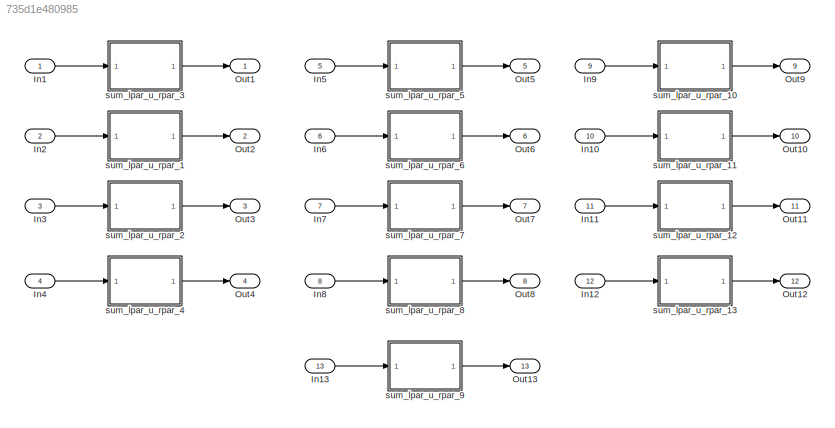
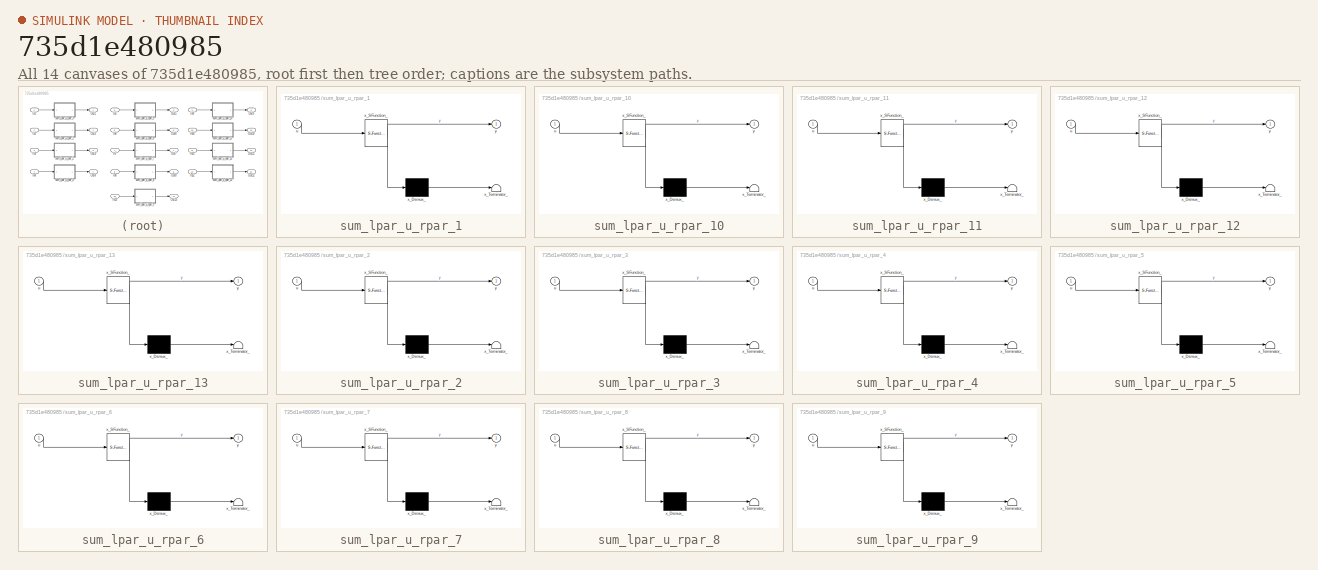
[diagram: thumbnail index - all 14 canvases of the model, root first then tree order]
MODEL slx_735d1e480985
KIND model
CONFIG AbsTol = auto
CONFIG EnableMultiTasking = off
CONFIG FixedStep = 0.100000
CONFIG MaxStep = auto
CONFIG MinStep = auto
CONFIG RelTol = 1e-3
CONFIG SampleTimeConstraint = Unconstrained
CONFIG SolverName = FixedStepDiscrete
CONFIG StartTime = 0.0
CONFIG StopTime = 10.0
WORKSPACE source: mxarray member
WORKSPACE already_pp = 1
BLOCK [Inport] In1
  PortDimensions = [1 3]
BLOCK [Inport] In10
  Port = 10
  PortDimensions = [3 1]
BLOCK [Inport] In11
  Port = 11
  PortDimensions = 1
BLOCK [Inport] In12
  Port = 12
  PortDimensions = [4 5]
BLOCK [Inport] In13
  Port = 13
  PortDimensions = [4 5]
BLOCK [Inport] In2
  Port = 2
  PortDimensions = [3 1]
BLOCK [Inport] In3
  Port = 3
  PortDimensions = 1
BLOCK [Inport] In4
  Port = 4
  PortDimensions = [4 5]
BLOCK [Inport] In5
  Port = 5
  PortDimensions = [1 3]
BLOCK [Inport] In6
  Port = 6
  PortDimensions = [3 1]
BLOCK [Inport] In7
  Port = 7
  PortDimensions = 1
BLOCK [Inport] In8
  Port = 8
  PortDimensions = [4 5]
BLOCK [Inport] In9
  Port = 9
  PortDimensions = [1 3]
BLOCK [Outport] Out1
  VectorParamsAs1DForOutWhenUnconnected = off
BLOCK [Outport] Out10
  Port = 10
  VectorParamsAs1DForOutWhenUnconnected = off
BLOCK [Outport] Out11
  Port = 11
  VectorParamsAs1DForOutWhenUnconnected = off
BLOCK [Outport] Out12
  Port = 12
  VectorParamsAs1DForOutWhenUnconnected = off
BLOCK [Outport] Out13
  Port = 13
  VectorParamsAs1DForOutWhenUnconnected = off
BLOCK [Outport] Out2
  Port = 2
  VectorParamsAs1DForOutWhenUnconnected = off
BLOCK [Outport] Out3
  Port = 3
  VectorParamsAs1DForOutWhenUnconnected = off
BLOCK [Outport] Out4
  Port = 4
  VectorParamsAs1DForOutWhenUnconnected = off
BLOCK [Outport] Out5
  Port = 5
  VectorParamsAs1DForOutWhenUnconnected = off
BLOCK [Outport] Out6
  Port = 6
  VectorParamsAs1DForOutWhenUnconnected = off
BLOCK [Outport] Out7
  Port = 7
  VectorParamsAs1DForOutWhenUnconnected = off
BLOCK [Outport] Out8
  Port = 8
  VectorParamsAs1DForOutWhenUnconnected = off
BLOCK [Outport] Out9
  Port = 9
  VectorParamsAs1DForOutWhenUnconnected = off
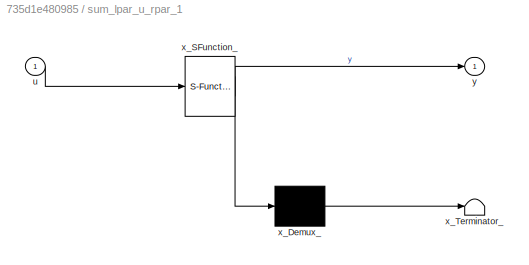
BLOCK [SubSystem] sum_lpar_u_rpar_1
  ErrorFcn = Stateflow.Translate.translate
  PermitHierarchicalResolution = ExplicitOnly
  Ports = [1, 1]
  RequestExecContextInheritance = off
  SFBlockType = MATLAB Function
  TreatAsAtomicUnit = on
BLOCK [Inport] sum_lpar_u_rpar_1/u
BLOCK [Demux] sum_lpar_u_rpar_1/x_Demux_
  Outputs = 1
  Ports = [1, 1]
BLOCK [S-Function] sum_lpar_u_rpar_1/x_SFunction_
  EnableBusSupport = on
  FunctionName = sf_sfun
  PortCounts = [1 2]
  Ports = [1, 2]
  SFcnIsStateOwnerBlock = off
  SFunctionDeploymentMode = off
  Tag = Stateflow S-Function 1
BLOCK [Terminator] sum_lpar_u_rpar_1/x_Terminator_
BLOCK [Outport] sum_lpar_u_rpar_1/y
  VectorParamsAs1DForOutWhenUnconnected = off
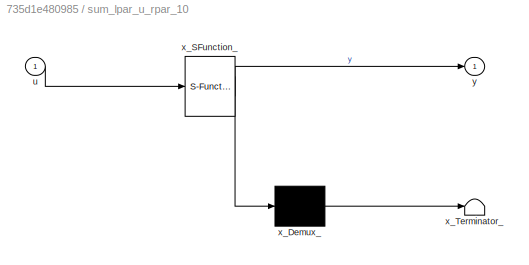
BLOCK [SubSystem] sum_lpar_u_rpar_10
  ErrorFcn = Stateflow.Translate.translate
  PermitHierarchicalResolution = ExplicitOnly
  Ports = [1, 1]
  RequestExecContextInheritance = off
  SFBlockType = MATLAB Function
  TreatAsAtomicUnit = on
BLOCK [Inport] sum_lpar_u_rpar_10/u
BLOCK [Demux] sum_lpar_u_rpar_10/x_Demux_
  Outputs = 1
  Ports = [1, 1]
BLOCK [S-Function] sum_lpar_u_rpar_10/x_SFunction_
  EnableBusSupport = on
  FunctionName = sf_sfun
  PortCounts = [1 2]
  Ports = [1, 2]
  SFcnIsStateOwnerBlock = off
  SFunctionDeploymentMode = off
  Tag = Stateflow S-Function 10
BLOCK [Terminator] sum_lpar_u_rpar_10/x_Terminator_
BLOCK [Outport] sum_lpar_u_rpar_10/y
  VectorParamsAs1DForOutWhenUnconnected = off
BLOCK [SubSystem] sum_lpar_u_rpar_11
  ErrorFcn = Stateflow.Translate.translate
  PermitHierarchicalResolution = ExplicitOnly
  Ports = [1, 1]
  RequestExecContextInheritance = off
  SFBlockType = MATLAB Function
  TreatAsAtomicUnit = on
BLOCK [Inport] sum_lpar_u_rpar_11/u
BLOCK [Demux] sum_lpar_u_rpar_11/x_Demux_
  Outputs = 1
  Ports = [1, 1]
BLOCK [S-Function] sum_lpar_u_rpar_11/x_SFunction_
  EnableBusSupport = on
  FunctionName = sf_sfun
  PortCounts = [1 2]
  Ports = [1, 2]
  SFcnIsStateOwnerBlock = off
  SFunctionDeploymentMode = off
  Tag = Stateflow S-Function 11
BLOCK [Terminator] sum_lpar_u_rpar_11/x_Terminator_
BLOCK [Outport] sum_lpar_u_rpar_11/y
  VectorParamsAs1DForOutWhenUnconnected = off
BLOCK [SubSystem] sum_lpar_u_rpar_12
  ErrorFcn = Stateflow.Translate.translate
  PermitHierarchicalResolution = ExplicitOnly
  Ports = [1, 1]
  RequestExecContextInheritance = off
  SFBlockType = MATLAB Function
  TreatAsAtomicUnit = on
BLOCK [Inport] sum_lpar_u_rpar_12/u
BLOCK [Demux] sum_lpar_u_rpar_12/x_Demux_
  Outputs = 1
  Ports = [1, 1]
BLOCK [S-Function] sum_lpar_u_rpar_12/x_SFunction_
  EnableBusSupport = on
  FunctionName = sf_sfun
  PortCounts = [1 2]
  Ports = [1, 2]
  SFcnIsStateOwnerBlock = off
  SFunctionDeploymentMode = off
  Tag = Stateflow S-Function 12
BLOCK [Terminator] sum_lpar_u_rpar_12/x_Terminator_
BLOCK [Outport] sum_lpar_u_rpar_12/y
  VectorParamsAs1DForOutWhenUnconnected = off
BLOCK [SubSystem] sum_lpar_u_rpar_13
  ErrorFcn = Stateflow.Translate.translate
  PermitHierarchicalResolution = ExplicitOnly
  Ports = [1, 1]
  RequestExecContextInheritance = off
  SFBlockType = MATLAB Function
  TreatAsAtomicUnit = on
BLOCK [Inport] sum_lpar_u_rpar_13/u
BLOCK [Demux] sum_lpar_u_rpar_13/x_Demux_
  Outputs = 1
  Ports = [1, 1]
BLOCK [S-Function] sum_lpar_u_rpar_13/x_SFunction_
  EnableBusSupport = on
  FunctionName = sf_sfun
  PortCounts = [1 2]
  Ports = [1, 2]
  SFcnIsStateOwnerBlock = off
  SFunctionDeploymentMode = off
  Tag = Stateflow S-Function 13
BLOCK [Terminator] sum_lpar_u_rpar_13/x_Terminator_
BLOCK [Outport] sum_lpar_u_rpar_13/y
  VectorParamsAs1DForOutWhenUnconnected = off
BLOCK [SubSystem] sum_lpar_u_rpar_2
  ErrorFcn = Stateflow.Translate.translate
  PermitHierarchicalResolution = ExplicitOnly
  Ports = [1, 1]
  RequestExecContextInheritance = off
  SFBlockType = MATLAB Function
  TreatAsAtomicUnit = on
BLOCK [Inport] sum_lpar_u_rpar_2/u
BLOCK [Demux] sum_lpar_u_rpar_2/x_Demux_
  Outputs = 1
  Ports = [1, 1]
BLOCK [S-Function] sum_lpar_u_rpar_2/x_SFunction_
  EnableBusSupport = on
  FunctionName = sf_sfun
  PortCounts = [1 2]
  Ports = [1, 2]
  SFcnIsStateOwnerBlock = off
  SFunctionDeploymentMode = off
  Tag = Stateflow S-Function 2
BLOCK [Terminator] sum_lpar_u_rpar_2/x_Terminator_
BLOCK [Outport] sum_lpar_u_rpar_2/y
  VectorParamsAs1DForOutWhenUnconnected = off
BLOCK [SubSystem] sum_lpar_u_rpar_3
  ErrorFcn = Stateflow.Translate.translate
  PermitHierarchicalResolution = ExplicitOnly
  Ports = [1, 1]
  RequestExecContextInheritance = off
  SFBlockType = MATLAB Function
  TreatAsAtomicUnit = on
BLOCK [Inport] sum_lpar_u_rpar_3/u
BLOCK [Demux] sum_lpar_u_rpar_3/x_Demux_
  Outputs = 1
  Ports = [1, 1]
BLOCK [S-Function] sum_lpar_u_rpar_3/x_SFunction_
  EnableBusSupport = on
  FunctionName = sf_sfun
  PortCounts = [1 2]
  Ports = [1, 2]
  SFcnIsStateOwnerBlock = off
  SFunctionDeploymentMode = off
  Tag = Stateflow S-Function 3
BLOCK [Terminator] sum_lpar_u_rpar_3/x_Terminator_
BLOCK [Outport] sum_lpar_u_rpar_3/y
  VectorParamsAs1DForOutWhenUnconnected = off
BLOCK [SubSystem] sum_lpar_u_rpar_4
  ErrorFcn = Stateflow.Translate.translate
  PermitHierarchicalResolution = ExplicitOnly
  Ports = [1, 1]
  RequestExecContextInheritance = off
  SFBlockType = MATLAB Function
  TreatAsAtomicUnit = on
BLOCK [Inport] sum_lpar_u_rpar_4/u
BLOCK [Demux] sum_lpar_u_rpar_4/x_Demux_
  Outputs = 1
  Ports = [1, 1]
BLOCK [S-Function] sum_lpar_u_rpar_4/x_SFunction_
  EnableBusSupport = on
  FunctionName = sf_sfun
  PortCounts = [1 2]
  Ports = [1, 2]
  SFcnIsStateOwnerBlock = off
  SFunctionDeploymentMode = off
  Tag = Stateflow S-Function 4
BLOCK [Terminator] sum_lpar_u_rpar_4/x_Terminator_
BLOCK [Outport] sum_lpar_u_rpar_4/y
  VectorParamsAs1DForOutWhenUnconnected = off
BLOCK [SubSystem] sum_lpar_u_rpar_5
  ErrorFcn = Stateflow.Translate.translate
  PermitHierarchicalResolution = ExplicitOnly
  Ports = [1, 1]
  RequestExecContextInheritance = off
  SFBlockType = MATLAB Function
  TreatAsAtomicUnit = on
BLOCK [Inport] sum_lpar_u_rpar_5/u
BLOCK [Demux] sum_lpar_u_rpar_5/x_Demux_
  Outputs = 1
  Ports = [1, 1]
BLOCK [S-Function] sum_lpar_u_rpar_5/x_SFunction_
  EnableBusSupport = on
  FunctionName = sf_sfun
  PortCounts = [1 2]
  Ports = [1, 2]
  SFcnIsStateOwnerBlock = off
  SFunctionDeploymentMode = off
  Tag = Stateflow S-Function 5
BLOCK [Terminator] sum_lpar_u_rpar_5/x_Terminator_
BLOCK [Outport] sum_lpar_u_rpar_5/y
  VectorParamsAs1DForOutWhenUnconnected = off
BLOCK [SubSystem] sum_lpar_u_rpar_6
  ErrorFcn = Stateflow.Translate.translate
  PermitHierarchicalResolution = ExplicitOnly
  Ports = [1, 1]
  RequestExecContextInheritance = off
  SFBlockType = MATLAB Function
  TreatAsAtomicUnit = on
BLOCK [Inport] sum_lpar_u_rpar_6/u
BLOCK [Demux] sum_lpar_u_rpar_6/x_Demux_
  Outputs = 1
  Ports = [1, 1]
BLOCK [S-Function] sum_lpar_u_rpar_6/x_SFunction_
  EnableBusSupport = on
  FunctionName = sf_sfun
  PortCounts = [1 2]
  Ports = [1, 2]
  SFcnIsStateOwnerBlock = off
  SFunctionDeploymentMode = off
  Tag = Stateflow S-Function 6
BLOCK [Terminator] sum_lpar_u_rpar_6/x_Terminator_
BLOCK [Outport] sum_lpar_u_rpar_6/y
  VectorParamsAs1DForOutWhenUnconnected = off
BLOCK [SubSystem] sum_lpar_u_rpar_7
  ErrorFcn = Stateflow.Translate.translate
  PermitHierarchicalResolution = ExplicitOnly
  Ports = [1, 1]
  RequestExecContextInheritance = off
  SFBlockType = MATLAB Function
  TreatAsAtomicUnit = on
BLOCK [Inport] sum_lpar_u_rpar_7/u
BLOCK [Demux] sum_lpar_u_rpar_7/x_Demux_
  Outputs = 1
  Ports = [1, 1]
BLOCK [S-Function] sum_lpar_u_rpar_7/x_SFunction_
  EnableBusSupport = on
  FunctionName = sf_sfun
  PortCounts = [1 2]
  Ports = [1, 2]
  SFcnIsStateOwnerBlock = off
  SFunctionDeploymentMode = off
  Tag = Stateflow S-Function 7
BLOCK [Terminator] sum_lpar_u_rpar_7/x_Terminator_
BLOCK [Outport] sum_lpar_u_rpar_7/y
  VectorParamsAs1DForOutWhenUnconnected = off
BLOCK [SubSystem] sum_lpar_u_rpar_8
  ErrorFcn = Stateflow.Translate.translate
  PermitHierarchicalResolution = ExplicitOnly
  Ports = [1, 1]
  RequestExecContextInheritance = off
  SFBlockType = MATLAB Function
  TreatAsAtomicUnit = on
BLOCK [Inport] sum_lpar_u_rpar_8/u
BLOCK [Demux] sum_lpar_u_rpar_8/x_Demux_
  Outputs = 1
  Ports = [1, 1]
BLOCK [S-Function] sum_lpar_u_rpar_8/x_SFunction_
  EnableBusSupport = on
  FunctionName = sf_sfun
  PortCounts = [1 2]
  Ports = [1, 2]
  SFcnIsStateOwnerBlock = off
  SFunctionDeploymentMode = off
  Tag = Stateflow S-Function 8
BLOCK [Terminator] sum_lpar_u_rpar_8/x_Terminator_
BLOCK [Outport] sum_lpar_u_rpar_8/y
  VectorParamsAs1DForOutWhenUnconnected = off
BLOCK [SubSystem] sum_lpar_u_rpar_9
  ErrorFcn = Stateflow.Translate.translate
  PermitHierarchicalResolution = ExplicitOnly
  Ports = [1, 1]
  RequestExecContextInheritance = off
  SFBlockType = MATLAB Function
  TreatAsAtomicUnit = on
BLOCK [Inport] sum_lpar_u_rpar_9/u
BLOCK [Demux] sum_lpar_u_rpar_9/x_Demux_
  Outputs = 1
  Ports = [1, 1]
BLOCK [S-Function] sum_lpar_u_rpar_9/x_SFunction_
  EnableBusSupport = on
  FunctionName = sf_sfun
  PortCounts = [1 2]
  Ports = [1, 2]
  SFcnIsStateOwnerBlock = off
  SFunctionDeploymentMode = off
  Tag = Stateflow S-Function 9
BLOCK [Terminator] sum_lpar_u_rpar_9/x_Terminator_
BLOCK [Outport] sum_lpar_u_rpar_9/y
  VectorParamsAs1DForOutWhenUnconnected = off
LINE In10:1 -> sum_lpar_u_rpar_11:1
LINE In11:1 -> sum_lpar_u_rpar_12:1
LINE In12:1 -> sum_lpar_u_rpar_13:1
LINE In13:1 -> sum_lpar_u_rpar_9:1
LINE In1:1 -> sum_lpar_u_rpar_3:1
LINE In2:1 -> sum_lpar_u_rpar_1:1
LINE In3:1 -> sum_lpar_u_rpar_2:1
LINE In4:1 -> sum_lpar_u_rpar_4:1
LINE In5:1 -> sum_lpar_u_rpar_5:1
LINE In6:1 -> sum_lpar_u_rpar_6:1
LINE In7:1 -> sum_lpar_u_rpar_7:1
LINE In8:1 -> sum_lpar_u_rpar_8:1
LINE In9:1 -> sum_lpar_u_rpar_10:1
LINE sum_lpar_u_rpar_10:1 -> Out9:1
LINE sum_lpar_u_rpar_11:1 -> Out10:1
LINE sum_lpar_u_rpar_12:1 -> Out11:1
LINE sum_lpar_u_rpar_13:1 -> Out12:1
LINE sum_lpar_u_rpar_1:1 -> Out2:1
LINE sum_lpar_u_rpar_2:1 -> Out3:1
LINE sum_lpar_u_rpar_3:1 -> Out1:1
LINE sum_lpar_u_rpar_4:1 -> Out4:1
LINE sum_lpar_u_rpar_5:1 -> Out5:1
LINE sum_lpar_u_rpar_6:1 -> Out6:1
LINE sum_lpar_u_rpar_7:1 -> Out7:1
LINE sum_lpar_u_rpar_8:1 -> Out8:1
LINE sum_lpar_u_rpar_9:1 -> Out13:1
CHART sum_lpar_u_rpar_2 states=1 transitions=1
  STATE_LABEL 'eML_blk_kernel()'
  STATE_LABEL 'SCRIPT:\nfunction y = fcn(u)\n\ny = any(u);\n'
CHART sum_lpar_u_rpar_3 states=1 transitions=1
  STATE_LABEL 'eML_blk_kernel()'
  STATE_LABEL 'SCRIPT:\nfunction y = fcn(u)\n\ny = any(u);\n'
CHART sum_lpar_u_rpar_4 states=1 transitions=1
  STATE_LABEL 'eML_blk_kernel()'
  STATE_LABEL 'SCRIPT:\nfunction y = fcn(u)\n\ny = any(u);\n'
CHART sum_lpar_u_rpar_5 states=1 transitions=1
  STATE_LABEL 'eML_blk_kernel()'
  STATE_LABEL 'SCRIPT:\nfunction y = fcn(u)\n\ny = any(u, 1);\n'
CHART sum_lpar_u_rpar_6 states=1 transitions=1
  STATE_LABEL 'eML_blk_kernel()'
  STATE_LABEL 'SCRIPT:\nfunction y = fcn(u)\n\ny = any(u, 1);\n'
CHART sum_lpar_u_rpar_7 states=1 transitions=1
  STATE_LABEL 'eML_blk_kernel()'
  STATE_LABEL 'SCRIPT:\nfunction y = fcn(u)\n\ny = any(u, 1);\n'
CHART sum_lpar_u_rpar_8 states=1 transitions=1
  STATE_LABEL 'eML_blk_kernel()'
  STATE_LABEL 'SCRIPT:\nfunction y = fcn(u)\n\ny = any(u, 1);\n'
CHART sum_lpar_u_rpar_9 states=1 transitions=1
  STATE_LABEL 'eML_blk_kernel()'
  STATE_LABEL 'SCRIPT:\nfunction y = fcn(u)\n\ny = any(any(u));\n'
CHART sum_lpar_u_rpar_1 states=1 transitions=1
  STATE_LABEL 'eML_blk_kernel()'
  STATE_LABEL 'SCRIPT:\nfunction y = fcn(u)\n\ny = any(u);\n'
CHART sum_lpar_u_rpar_10 states=1 transitions=1
  STATE_LABEL 'eML_blk_kernel()'
  STATE_LABEL 'SCRIPT:\nfunction y = fcn(u)\n\ny = any(u, 2);\n'
CHART sum_lpar_u_rpar_11 states=1 transitions=1
  STATE_LABEL 'eML_blk_kernel()'
  STATE_LABEL 'SCRIPT:\nfunction y = fcn(u)\n\ny = any(u, 2);\n'
CHART sum_lpar_u_rpar_12 states=1 transitions=1
  STATE_LABEL 'eML_blk_kernel()'
  STATE_LABEL 'SCRIPT:\nfunction y = fcn(u)\n\ny = any(u, 2);\n'
CHART sum_lpar_u_rpar_13 states=1 transitions=1
  STATE_LABEL 'eML_blk_kernel()'
  STATE_LABEL 'SCRIPT:\nfunction y = fcn(u)\n\ny = any(u, 2);\n'
CHART  states=0 transitions=0
CHART  states=0 transitions=0
CHART  states=0 transitions=0
CHART  states=0 transitions=0
CHART  states=0 transitions=0
CHART  states=0 transitions=0
CHART  states=0 transitions=0
CHART  states=0 transitions=0
CHART  states=0 transitions=0
CHART  states=0 transitions=0
CHART  states=0 transitions=0
CHART  states=0 transitions=0
CHART  states=0 transitions=0
